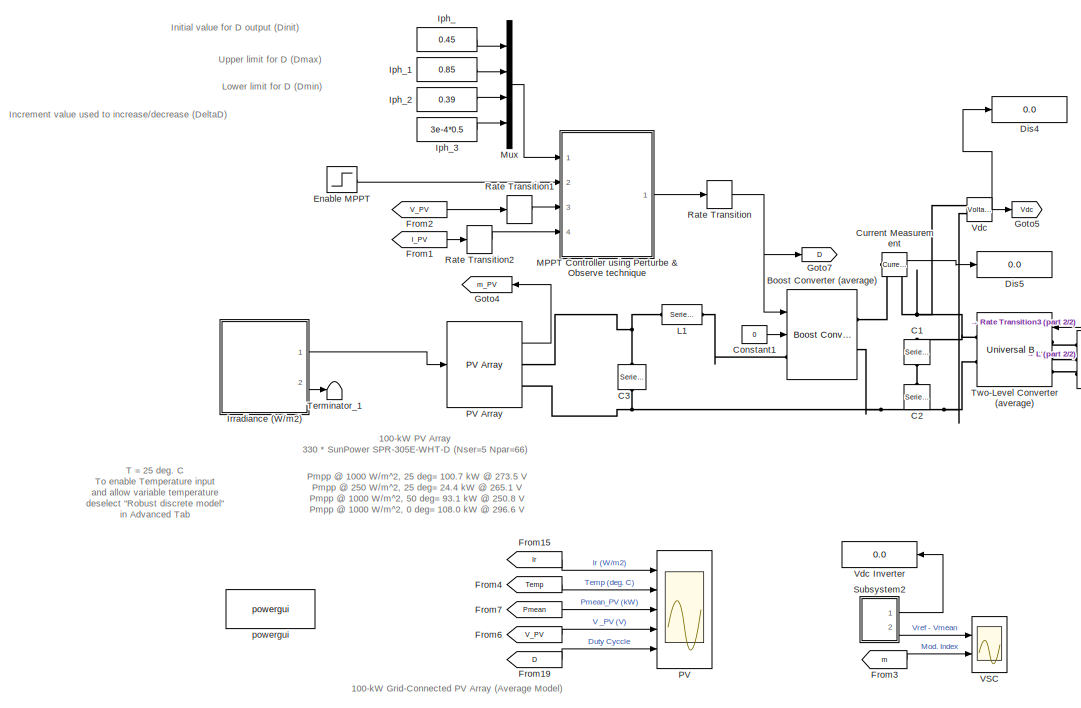
[diagram: root canvas - part 1/2, left side, full height]
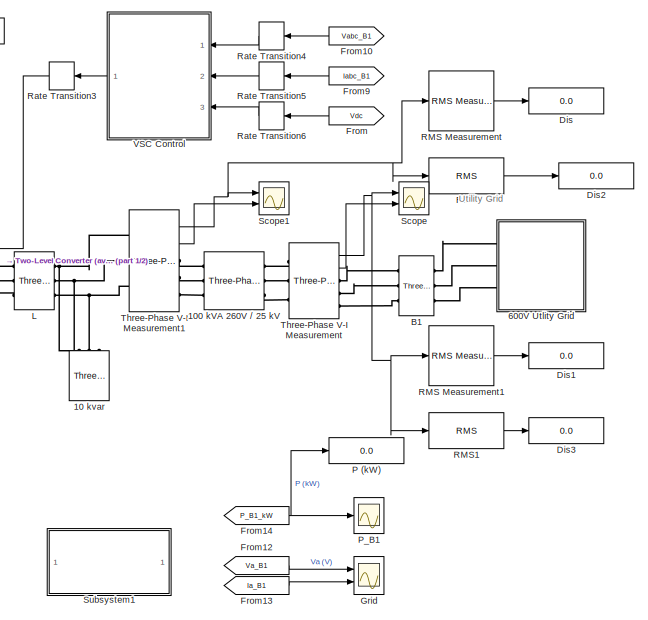
[diagram: root canvas - part 2/2, right side, full height]
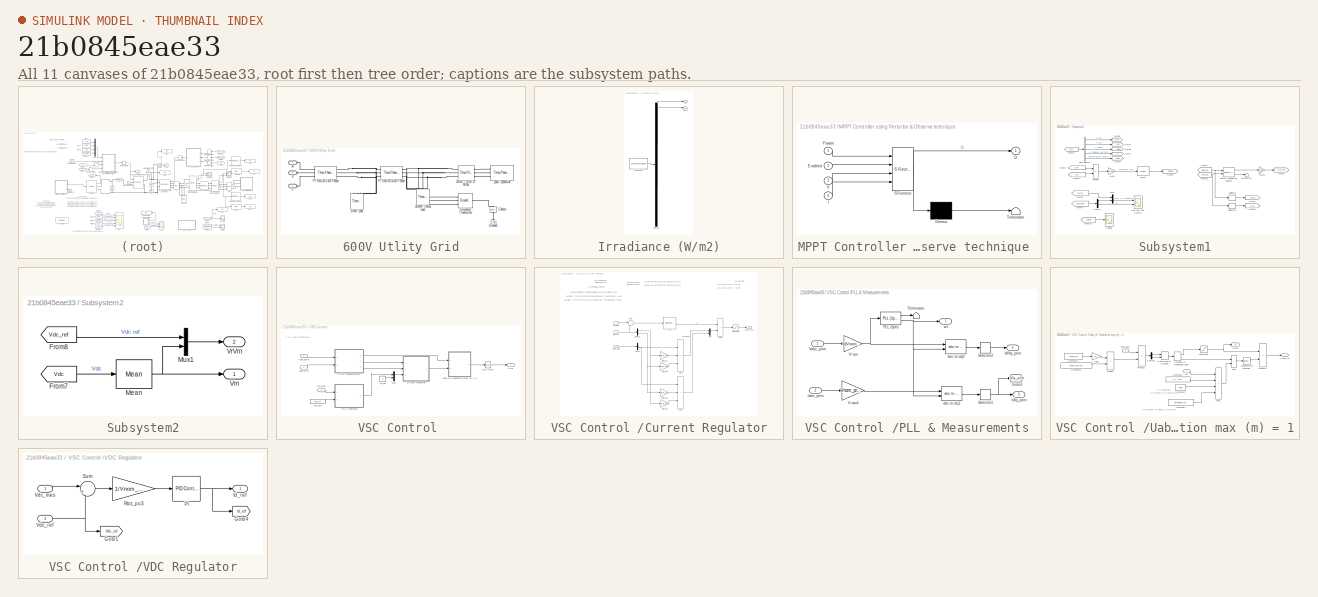
[diagram: thumbnail index - all 11 canvases of the model, root first then tree order]
MODEL slx_21b0845eae33
KIND model
CONFIG AbsTol = auto
CONFIG EnableMultiTasking = off
CONFIG FixedStep = auto
CONFIG MaxStep = auto
CONFIG MinStep = auto
CONFIG PreLoadFcn = Ts_Power=50e-6;\nTs_Control=100e-6;\n\n\n
CONFIG RelTol = 1e-3
CONFIG SampleTimeConstraint = Unconstrained
CONFIG Solver = FixedStepDiscrete
CONFIG SolverName = FixedStepDiscrete
CONFIG StartTime = 0.0
CONFIG StopTime = 0.1
BLOCK [Reference] 10 kvar  REF=powerlib/Elements/Three-Phase
Series RLC Load
  AttributesFormatString = \n
  NameLocation = right
  Ports = [0, 0, 0, 0, 0, 3]
  SourceBlock = powerlib/Elements/Three-Phase\nSeries RLC Load
  SourceProductBaseCode = PS
  SourceType = Three-Phase Series RLC Load
BLOCK [Reference] 100 kVA 260V // 25 kV  REF=powerlib/Elements/Three-Phase
Transformer
(Two Windings)
  AttributesFormatString = \n
  Ports = [0, 0, 0, 0, 0, 3, 3]
  SourceBlock = powerlib/Elements/Three-Phase\nTransformer\n(Two Windings)
  SourceProductBaseCode = PS
  SourceType = Three-Phase Transformer (Two Windings)
BLOCK [SubSystem] 600V Utlity Grid
  Ports = [0, 0, 0, 0, 0, 3]
  RequestExecContextInheritance = off
BLOCK [Reference] 600V Utlity Grid/120 kV // 25 kV 47 MVA  REF=powerlib/Elements/Three-Phase
Transformer
(Two Windings)
  AttributesFormatString = \n
  Ports = [0, 0, 0, 0, 0, 3, 3]
  SourceBlock = powerlib/Elements/Three-Phase\nTransformer\n(Two Windings)
  SourceProductBaseCode = PS
  SourceType = Three-Phase Transformer (Two Windings)
BLOCK [Reference] 600V Utlity Grid/120kV 2500MVA  REF=powerlib/Electrical
Sources/Three-Phase Source
  Ports = [0, 0, 0, 0, 0, 0, 3]
  SourceBlock = powerlib/Electrical\nSources/Three-Phase Source
  SourceProductBaseCode = PS
  SourceType = Three-Phase Source
BLOCK [Reference] 600V Utlity Grid/2-MW Load  REF=powerlib/Elements/Three-Phase
Parallel RLC Load
  AttributesFormatString = \n
  NameLocation = left
  Ports = [0, 0, 0, 0, 0, 3]
  SourceBlock = powerlib/Elements/Three-Phase\nParallel RLC Load
  SourceProductBaseCode = PS
  SourceType = Three-Phase Parallel RLC Load
BLOCK [Reference] 600V Utlity Grid/3.3ohms   REF=powerlib/Elements/Series RLC Branch
  NameLocation = right
  Ports = [0, 0, 0, 0, 0, 1, 1]
  SourceBlock = powerlib/Elements/Series RLC Branch
  SourceProductBaseCode = PS
  SourceType = Series RLC Branch
BLOCK [Reference] 600V Utlity Grid/30-MW 2-Mvar Load  REF=powerlib/Elements/Three-Phase
Parallel RLC Load
  AttributesFormatString = \n
  NameLocation = left
  Ports = [0, 0, 0, 0, 0, 3]
  SourceBlock = powerlib/Elements/Three-Phase\nParallel RLC Load
  SourceProductBaseCode = PS
  SourceType = Three-Phase Parallel RLC Load
BLOCK [PMIOPort] 600V Utlity Grid/A
  Side = Left
BLOCK [PMIOPort] 600V Utlity Grid/B
  Port = 2
  Side = Left
BLOCK [PMIOPort] 600V Utlity Grid/C
  Port = 3
  Side = Left
BLOCK [Reference] 600V Utlity Grid/Ground3  REF=powerlib/Elements/Ground
  AttributesFormatString = \n
  NameLocation = right
  Ports = [0, 0, 0, 0, 0, 1]
  SourceBlock = powerlib/Elements/Ground
  SourceProductBaseCode = PS
  SourceType = Ground
BLOCK [Reference] 600V Utlity Grid/Grounding Transformer   REF=powerlib/Elements/Grounding
Transformer 
  Ports = [0, 0, 0, 0, 0, 3, 1]
  SourceBlock = powerlib/Elements/Grounding\nTransformer
  SourceProductBaseCode = PS
  SourceType = Grounding Transformer
BLOCK [Reference] 600V Utlity Grid/PI Section 14 km Feeder  REF=powerlib/Elements/Three-Phase
PI Section Line
  AttributesFormatString = \n
  Ports = [0, 0, 0, 0, 0, 3, 3]
  SourceBlock = powerlib/Elements/Three-Phase\nPI Section Line
  SourceProductBaseCode = PS
  SourceType = Three-Phase PI Section Line
BLOCK [Reference] 600V Utlity Grid/PI Section 5 km Feeder  REF=powerlib/Elements/Three-Phase
PI Section Line
  AttributesFormatString = \n
  Ports = [0, 0, 0, 0, 0, 3, 3]
  SourceBlock = powerlib/Elements/Three-Phase\nPI Section Line
  SourceProductBaseCode = PS
  SourceType = Three-Phase PI Section Line
BLOCK [Reference] B1  REF=powerlib/Measurements/Three-Phase
V-I Measurement
  Ports = [0, 0, 0, 0, 0, 3, 3]
  SourceBlock = powerlib/Measurements/Three-Phase\nV-I Measurement
  SourceProductBaseCode = PS
  SourceType = Three-Phase VI Measurement
BLOCK [Reference] Boost Converter (average)  REF=powerlib/Power
Electronics/Boost Converter
  Ports = [2, 0, 0, 0, 0, 1, 2]
  SourceBlock = powerlib/Power\nElectronics/Boost Converter
  SourceProductBaseCode = PS
  SourceType = Boost Converter
BLOCK [Reference] C1  REF=powerlib/Elements/Series RLC Branch
  AttributesFormatString = \n
  NameLocation = left
  Ports = [0, 0, 0, 0, 0, 1, 1]
  SourceBlock = powerlib/Elements/Series RLC Branch
  SourceProductBaseCode = PS
  SourceType = Series RLC Branch
BLOCK [Reference] C2  REF=powerlib/Elements/Series RLC Branch
  AttributesFormatString = \n
  NameLocation = left
  Ports = [0, 0, 0, 0, 0, 1, 1]
  SourceBlock = powerlib/Elements/Series RLC Branch
  SourceProductBaseCode = PS
  SourceType = Series RLC Branch
BLOCK [Reference] C3  REF=powerlib/Elements/Series RLC Branch
  AttributesFormatString = \n
  NameLocation = left
  Ports = [0, 0, 0, 0, 0, 1, 1]
  SourceBlock = powerlib/Elements/Series RLC Branch
  SourceProductBaseCode = PS
  SourceType = Series RLC Branch
BLOCK [Constant] Constant1
  Value = 0
BLOCK [Reference] Current Measurement  REF=powerlib/Measurements/Current Measurement
  Ports = [0, 1, 0, 0, 0, 1, 1]
  SourceBlock = powerlib/Measurements/Current Measurement
  SourceProductBaseCode = PS
  SourceType = Current Measurement
  UserDataPersistent = on
BLOCK [Display] Dis
  Decimation = 2000
  Format = bank
  Ports = [1]
BLOCK [Display] Dis1
  Decimation = 2000
  Format = bank
  Ports = [1]
BLOCK [Display] Dis2
  Decimation = 2000
  Format = bank
  Ports = [1]
BLOCK [Display] Dis3
  Decimation = 2000
  Format = bank
  Ports = [1]
BLOCK [Display] Dis4
  Decimation = 2000
  Format = bank
  Ports = [1]
BLOCK [Display] Dis5
  Decimation = 2000
  Format = bank
  Ports = [1]
BLOCK [Step] Enable MPPT
  SampleTime = 0
  Time = Ts_Control
BLOCK [From] From
  GotoTag = Vdc
  TagVisibility = global
BLOCK [From] From1
  CloseFcn = tagdialog Close
  GotoTag = I_PV
  TagVisibility = global
BLOCK [From] From10
  CloseFcn = tagdialog Close
  GotoTag = Vabc_B1
  TagVisibility = global
BLOCK [From] From12
  CloseFcn = tagdialog Close
  GotoTag = Va_B1
  TagVisibility = global
BLOCK [From] From13
  CloseFcn = tagdialog Close
  GotoTag = Ia_B1
  TagVisibility = global
BLOCK [From] From14
  CloseFcn = tagdialog Close
  GotoTag = P_B1_kW
  TagVisibility = global
BLOCK [From] From15
  CloseFcn = tagdialog Close
  GotoTag = Ir
  TagVisibility = global
BLOCK [From] From19
  CloseFcn = tagdialog Close
  GotoTag = D
  TagVisibility = global
BLOCK [From] From2
  CloseFcn = tagdialog Close
  GotoTag = V_PV
  TagVisibility = global
BLOCK [From] From3
  CloseFcn = tagdialog Close
  GotoTag = m
  TagVisibility = global
BLOCK [From] From4
  CloseFcn = tagdialog Close
  GotoTag = Temp
  TagVisibility = global
BLOCK [From] From6
  CloseFcn = tagdialog Close
  GotoTag = V_PV
  TagVisibility = global
BLOCK [From] From7
  CloseFcn = tagdialog Close
  GotoTag = Pmean
  TagVisibility = global
BLOCK [From] From9
  CloseFcn = tagdialog Close
  GotoTag = Iabc_B1
  TagVisibility = global
BLOCK [Goto] Goto4
  GotoTag = m_PV
  TagVisibility = global
BLOCK [Goto] Goto5
  GotoTag = Vdc
  TagVisibility = global
BLOCK [Goto] Goto7
  GotoTag = D
  TagVisibility = global
BLOCK [Scope] Grid
  Floating = off
  NumInputPorts = 2
  Ports = [2]
  ScopeSpecificationString = Simulink.scopes.TimeScopeBlockCfg('CurrentConfiguration', extmgr.ConfigurationSet(extmgr.Configuration('Core','General UI',true),extmgr.Configuration('Core','Source UI',true),extmgr.Configuration('Sources','WiredSimulink',true,'DataLoggingSaveFormat','Array','DataLoggingDecimation','1','DataLoggingDecimateData',true,'DataLoggingVariableName','ScopeData1'),extmgr.Configuration('Visuals','Time Domai...<+2284ch>
BLOCK [Constant] Iph_
  Value = 0.45
BLOCK [Constant] Iph_1
  Value = 0.85
BLOCK [Constant] Iph_2
  Value = 0.39
BLOCK [Constant] Iph_3
  Value = 3e-4*0.5
BLOCK [SubSystem] Irradiance (W//m2)
  ClipboardFcn = sigbuilder_block('clipboard');
  CloseFcn = sigbuilder_block('close');
  ContinueFcn = sigbuilder_block('continue')
  CopyFcn = sigbuilder_block('copy');
  DeleteFcn = sigbuilder_block('delete');
  LoadFcn = sigbuilder_block('load');
  MaskHideContents = on
  ModelCloseFcn = sigbuilder_block('modelClose');
  NameChangeFcn = sigbuilder_block('namechange');
  NameLocation = top
  OpenFcn = sigbuilder_block('open',[406.5 224.25 550.5 395.25 ]);
  PauseFcn = sigbuilder_block('pause')
  Ports = [0, 2]
  PreSaveFcn = sigbuilder_block('preSave');
  RequestExecContextInheritance = off
  StartFcn = sigbuilder_block('start');
  StopFcn = sigbuilder_block('stop');
  Tag = STV Subsys
BLOCK [Demux] Irradiance (W//m2)/Demux
  DisplayOption = none
  Outputs = 2
  Ports = [1, 2]
  Tag = STV Demux
BLOCK [FromWorkspace] Irradiance (W//m2)/FromWs
  Tag = STV FromWs
  VariableName = tuvar
BLOCK [Outport] Irradiance (W//m2)/Ir
  Tag = STV Outport
  VectorParamsAs1DForOutWhenUnconnected = off
BLOCK [Outport] Irradiance (W//m2)/Temp
  Port = 2
  Tag = STV Outport
  VectorParamsAs1DForOutWhenUnconnected = off
BLOCK [Reference] L  REF=powerlib/Elements/Three-Phase
Series RLC Branch
  AttributesFormatString = \n
  Ports = [0, 0, 0, 0, 0, 3, 3]
  SourceBlock = powerlib/Elements/Three-Phase\nSeries RLC Branch
  SourceProductBaseCode = PS
  SourceType = Three-Phase Series RLC Branch
BLOCK [Reference] L1  REF=powerlib/Elements/Series RLC Branch
  Ports = [0, 0, 0, 0, 0, 1, 1]
  SourceBlock = powerlib/Elements/Series RLC Branch
  SourceProductBaseCode = PS
  SourceType = Series RLC Branch
BLOCK [SubSystem] MPPT Controller using Perturbe & Observe technique 
  ErrorFcn = Stateflow.Translate.translate
  NameLocation = top
  PermitHierarchicalResolution = ExplicitOnly
  Ports = [4, 1]
  RequestExecContextInheritance = off
  SFBlockType = MATLAB Function
  TreatAsAtomicUnit = on
BLOCK [Demux] MPPT Controller using Perturbe & Observe technique / Demux 
  Outputs = 1
  Ports = [1, 1]
BLOCK [S-Function] MPPT Controller using Perturbe & Observe technique / SFunction 
  EnableBusSupport = on
  FunctionName = sf_sfun
  PortCounts = [4 2]
  Ports = [4, 2]
  SFcnIsStateOwnerBlock = off
  SFunctionDeploymentMode = off
  Tag = Stateflow S-Function 4
BLOCK [Terminator] MPPT Controller using Perturbe & Observe technique / Terminator 
BLOCK [Outport] MPPT Controller using Perturbe & Observe technique /D
  VectorParamsAs1DForOutWhenUnconnected = off
BLOCK [Inport] MPPT Controller using Perturbe & Observe technique /Enabled
  Port = 2
BLOCK [Inport] MPPT Controller using Perturbe & Observe technique /I
  Port = 4
BLOCK [Inport] MPPT Controller using Perturbe & Observe technique /Param
BLOCK [Inport] MPPT Controller using Perturbe & Observe technique /V
  Port = 3
BLOCK [Mux] Mux
  DisplayOption = bar
  Ports = [4, 1]
BLOCK [Display] P (kW)
  Decimation = 2000
  Format = bank
  Ports = [1]
BLOCK [Scope] PV
  Floating = off
  NumInputPorts = 5
  Ports = [5]
  ScopeSpecificationString = Simulink.scopes.TimeScopeBlockCfg('CurrentConfiguration', extmgr.ConfigurationSet(extmgr.Configuration('Core','General UI',true),extmgr.Configuration('Core','Source UI',true),extmgr.Configuration('Sources','WiredSimulink',true,'DataLoggingSaveFormat','Array','DataLoggingDecimation','1','DataLoggingDecimateData',true,'DataLoggingVariableName','ScopeData3'),extmgr.Configuration('Visuals','Time Domai...<+4452ch>
BLOCK [Reference] PV Array  REF=re_lib/Solar/PV Array
  Ports = [1, 1, 0, 0, 0, 0, 2]
  SourceBlock = re_lib/Solar/PV Array
  SourceProductBaseCode = PS
  SourceType = PV array
BLOCK [Scope] P_B1
  Floating = off
  NumInputPorts = 1
  Ports = [1]
  ScopeSpecificationString = Simulink.scopes.TimeScopeBlockCfg('CurrentConfiguration', extmgr.ConfigurationSet(extmgr.Configuration('Core','General UI',true),extmgr.Configuration('Core','Source UI',true),extmgr.Configuration('Sources','WiredSimulink',true,'DataLoggingSaveFormat','Array','DataLoggingDecimation','1','DataLoggingDecimateData',true,'DataLoggingVariableName','ScopeData2'),extmgr.Configuration('Visuals','Time Domai...<+865ch>
BLOCK [Reference] RMS  REF=dspstat3/RMS
  Ports = [1, 1]
  SourceBlock = dspstat3/RMS
  SourceProductBaseCode = DS
  SourceType = RMS
  UserDataPersistent = on
BLOCK [Reference] RMS Measurement  REF=eeRmsMeasurement/RMS
Measurement
  Commented = on
  Ports = [1, 1]
  SourceBlock = eeRmsMeasurement/RMS\nMeasurement
  SourceProductBaseCode = PS
  SourceType = RMS Measurement
BLOCK [Reference] RMS Measurement1  REF=eeRmsMeasurement/RMS
Measurement
  Commented = on
  Ports = [1, 1]
  SourceBlock = eeRmsMeasurement/RMS\nMeasurement
  SourceProductBaseCode = PS
  SourceType = RMS Measurement
BLOCK [Reference] RMS1  REF=dspstat3/RMS
  Ports = [1, 1]
  SourceBlock = dspstat3/RMS
  SourceProductBaseCode = DS
  SourceType = RMS
  UserDataPersistent = on
BLOCK [RateTransition] Rate Transition
  OutPortSampleTime = Ts_Power
BLOCK [RateTransition] Rate Transition1
  OutPortSampleTime = Ts_Control
BLOCK [RateTransition] Rate Transition2
  OutPortSampleTime = Ts_Control
BLOCK [RateTransition] Rate Transition3
  NameLocation = top
  OutPortSampleTime = Ts_Power
BLOCK [RateTransition] Rate Transition4
  OutPortSampleTime = Ts_Control
BLOCK [RateTransition] Rate Transition5
  OutPortSampleTime = Ts_Control
BLOCK [RateTransition] Rate Transition6
  OutPortSampleTime = Ts_Control
BLOCK [Scope] Scope
  Floating = off
  NumInputPorts = 2
  Ports = [2]
  ScopeSpecificationString = Simulink.scopes.TimeScopeBlockCfg('CurrentConfiguration', extmgr.ConfigurationSet(extmgr.Configuration('Core','General UI',true),extmgr.Configuration('Core','Source UI',true),extmgr.Configuration('Sources','WiredSimulink',true,'DataLoggingVariableName','ScopeData1'),extmgr.Configuration('Visuals','Time Domain',true,'SerializedDisplays',{struct('MinYLimReal','-24960.74448','MaxYLimReal','21962.5171...<+2321ch>
BLOCK [Scope] Scope1
  Floating = off
  NumInputPorts = 2
  Ports = [2]
  ScopeSpecificationString = Simulink.scopes.TimeScopeBlockCfg('CurrentConfiguration', extmgr.ConfigurationSet(extmgr.Configuration('Core','General UI',true),extmgr.Configuration('Core','Source UI',true),extmgr.Configuration('Sources','WiredSimulink',true,'DataLoggingVariableName','ScopeData2'),extmgr.Configuration('Visuals','Time Domain',true,'SerializedDisplays',{struct('MinYLimReal','-293.51757','MaxYLimReal','295.5805','Y...<+2319ch>
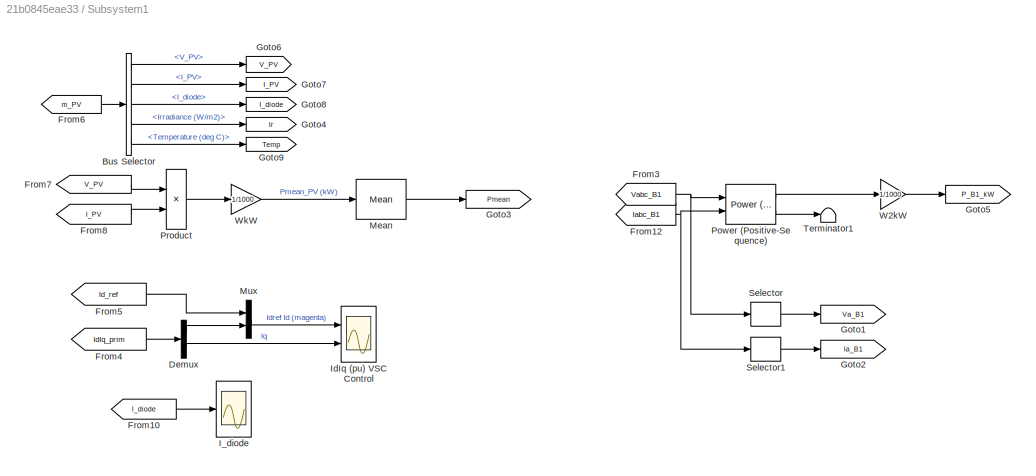
BLOCK [SubSystem] Subsystem1
  NameLocation = top
  Ports = []
  RequestExecContextInheritance = off
BLOCK [BusSelector] Subsystem1/Bus Selector
  OutputSignals = V_PV,I_PV,I_diode,Irradiance (W/m2),Temperature (deg C)
  Ports = [1, 5]
BLOCK [Demux] Subsystem1/Demux
  Outputs = 2
  Ports = [1, 2]
BLOCK [From] Subsystem1/From10
  CloseFcn = tagdialog Close
  GotoTag = I_diode
  TagVisibility = global
BLOCK [From] Subsystem1/From12
  CloseFcn = tagdialog Close
  GotoTag = Iabc_B1
  TagVisibility = global
BLOCK [From] Subsystem1/From3
  CloseFcn = tagdialog Close
  GotoTag = Vabc_B1
  TagVisibility = global
BLOCK [From] Subsystem1/From4
  CloseFcn = tagdialog Close
  GotoTag = IdIq_prim
  TagVisibility = global
BLOCK [From] Subsystem1/From5
  CloseFcn = tagdialog Close
  GotoTag = Id_ref
  TagVisibility = global
BLOCK [From] Subsystem1/From6
  GotoTag = m_PV
  TagVisibility = global
BLOCK [From] Subsystem1/From7
  GotoTag = V_PV
  TagVisibility = global
BLOCK [From] Subsystem1/From8
  GotoTag = I_PV
  TagVisibility = global
BLOCK [Goto] Subsystem1/Goto1
  GotoTag = Va_B1
  TagVisibility = global
BLOCK [Goto] Subsystem1/Goto2
  GotoTag = Ia_B1
  TagVisibility = global
BLOCK [Goto] Subsystem1/Goto3
  GotoTag = Pmean
  TagVisibility = global
BLOCK [Goto] Subsystem1/Goto4
  GotoTag = Ir
  TagVisibility = global
BLOCK [Goto] Subsystem1/Goto5
  GotoTag = P_B1_kW
  TagVisibility = global
BLOCK [Goto] Subsystem1/Goto6
  GotoTag = V_PV
  TagVisibility = global
BLOCK [Goto] Subsystem1/Goto7
  GotoTag = I_PV
  TagVisibility = global
BLOCK [Goto] Subsystem1/Goto8
  GotoTag = I_diode
  TagVisibility = global
BLOCK [Goto] Subsystem1/Goto9
  GotoTag = Temp
  TagVisibility = global
BLOCK [Scope] Subsystem1/I_diode
  Floating = off
  NumInputPorts = 1
  Ports = [1]
  ScopeSpecificationString = Simulink.scopes.TimeScopeBlockCfg('CurrentConfiguration', extmgr.ConfigurationSet(extmgr.Configuration('Core','General UI',true),extmgr.Configuration('Core','Source UI',true),extmgr.Configuration('Sources','WiredSimulink',true,'DataLoggingSaveFormat','Array','DataLoggingDecimation','1','DataLoggingDecimateData',true),extmgr.Configuration('Visuals','Time Domain',true,'DisplayPropertyDefaults',struc...<+826ch>
BLOCK [Scope] Subsystem1/IdIq (pu) VSC Control
  Floating = off
  NumInputPorts = 2
  Ports = [2]
  ScopeSpecificationString = Simulink.scopes.TimeScopeBlockCfg('CurrentConfiguration', extmgr.ConfigurationSet(extmgr.Configuration('Core','General UI',true),extmgr.Configuration('Core','Source UI',true),extmgr.Configuration('Sources','WiredSimulink',true,'DataLoggingSaveFormat','Array','DataLoggingDecimation','1','DataLoggingDecimateData',true),extmgr.Configuration('Visuals','Time Domain',true,'SerializedDisplays',{struct('M...<+2239ch>
BLOCK [Reference] Subsystem1/Mean  REF=powerlib_meascontrol/Measurements/Mean
  Ports = [1, 1]
  SourceBlock = powerlib_meascontrol/Measurements/Mean
  SourceProductBaseCode = PS
  SourceType = Mean
BLOCK [Mux] Subsystem1/Mux
  DisplayOption = bar
  Inputs = 2
  Ports = [2, 1]
BLOCK [Reference] Subsystem1/Power (Positive-Sequence)  REF=powerlib_meascontrol/Measurements/Power
(Positive-Sequence)
  Ports = [2, 2]
  SourceBlock = powerlib_meascontrol/Measurements/Power\n(Positive-Sequence)
  SourceProductBaseCode = PS
  SourceType = Power (Positive-Sequence)
BLOCK [Product] Subsystem1/Product
  Ports = [2, 1]
  RndMeth = Zero
BLOCK [Selector] Subsystem1/Selector
  IndexOptions = Index vector (dialog)
  Indices = [1]
  InputPortWidth = 3
  OutputSizes = 1
  Ports = [1, 1]
BLOCK [Selector] Subsystem1/Selector1
  IndexOptions = Index vector (dialog)
  Indices = [1]
  InputPortWidth = 3
  OutputSizes = 1
  Ports = [1, 1]
BLOCK [Terminator] Subsystem1/Terminator1
  NameLocation = top
BLOCK [Gain] Subsystem1/W2kW
  Gain = 1/1000
BLOCK [Gain] Subsystem1/WkW
  Gain = 1/1000
BLOCK [SubSystem] Subsystem2
  Ports = [0, 2]
  RequestExecContextInheritance = off
BLOCK [From] Subsystem2/From7
  CloseFcn = tagdialog Close
  GotoTag = Vdc
  TagVisibility = global
BLOCK [From] Subsystem2/From8
  CloseFcn = tagdialog Close
  GotoTag = Vdc_ref
  TagVisibility = global
BLOCK [Reference] Subsystem2/Mean  REF=powerlib_meascontrol/Measurements/Mean
  Ports = [1, 1]
  SourceBlock = powerlib_meascontrol/Measurements/Mean
  SourceProductBaseCode = PS
  SourceType = Mean
BLOCK [Mux] Subsystem2/Mux1
  DisplayOption = bar
  Inputs = 2
  Ports = [2, 1]
BLOCK [Outport] Subsystem2/Vm
  VectorParamsAs1DForOutWhenUnconnected = off
BLOCK [Outport] Subsystem2/VrVm
  Port = 2
  VectorParamsAs1DForOutWhenUnconnected = off
BLOCK [Terminator] Terminator_1
BLOCK [Reference] Three-Phase V-I Measurement  REF=powerlib/Measurements/Three-Phase
V-I Measurement
  Ports = [0, 2, 0, 0, 0, 3, 3]
  SourceBlock = powerlib/Measurements/Three-Phase\nV-I Measurement
  SourceProductBaseCode = PS
  SourceType = Three-Phase VI Measurement
BLOCK [Reference] Three-Phase V-I Measurement1  REF=powerlib/Measurements/Three-Phase
V-I Measurement
  Ports = [0, 2, 0, 0, 0, 3, 3]
  SourceBlock = powerlib/Measurements/Three-Phase\nV-I Measurement
  SourceProductBaseCode = PS
  SourceType = Three-Phase VI Measurement
BLOCK [Reference] Two-Level Converter (average)  REF=powerlib/Power
Electronics/Universal Bridge
  Ports = [1, 0, 0, 0, 0, 3, 2]
  SourceBlock = powerlib/Power\nElectronics/Universal Bridge
  SourceProductBaseCode = PS
  SourceType = Universal Bridge
BLOCK [Scope] VSC
  Floating = off
  NumInputPorts = 2
  Ports = [2]
  ScopeSpecificationString = Simulink.scopes.TimeScopeBlockCfg('CurrentConfiguration', extmgr.ConfigurationSet(extmgr.Configuration('Core','General UI',true),extmgr.Configuration('Core','Source UI',true),extmgr.Configuration('Sources','WiredSimulink',true,'DataLoggingSaveFormat','Array','DataLoggingDecimation','1','DataLoggingDecimateData',true,'DataLoggingVariableName','ScopeData4'),extmgr.Configuration('Visuals','Time Domai...<+2323ch>
BLOCK [SubSystem] VSC Control 
  NameLocation = top
  Ports = [3, 1]
  RequestExecContextInheritance = off
BLOCK [SubSystem] VSC Control /Current Regulator
  Ports = [3, 1]
  RequestExecContextInheritance = off
BLOCK [Sum] VSC Control /Current Regulator/Add1
  IconShape = rectangular
  Inputs = ++-
  Ports = [3, 1]
BLOCK [Sum] VSC Control /Current Regulator/Add2
  IconShape = rectangular
  Ports = [2, 1]
BLOCK [Sum] VSC Control /Current Regulator/Add3
  IconShape = rectangular
  Inputs = +++
  Ports = [3, 1]
BLOCK [Demux] VSC Control /Current Regulator/Demux
  Outputs = 2
  Ports = [1, 2]
BLOCK [Demux] VSC Control /Current Regulator/Demux1
  Outputs = 2
  Ports = [1, 2]
BLOCK [Inport] VSC Control /Current Regulator/IdIq_mes
  Port = 2
  PortDimensions = 2
BLOCK [Inport] VSC Control /Current Regulator/IdIq_ref
  Port = 3
  PortDimensions = 2
BLOCK [Gain] VSC Control /Current Regulator/Ltot_pu1
  Gain = Ltot_pu
  OutDataTypeStr = Inherit: Same as input
  ParamDataTypeStr = Inherit: Same as input
  SaturateOnIntegerOverflow = on
BLOCK [Gain] VSC Control /Current Regulator/Ltot_pu2
  Gain = Ltot_pu
  OutDataTypeStr = Inherit: Same as input
  ParamDataTypeStr = Inherit: Same as input
  SaturateOnIntegerOverflow = on
BLOCK [Mux] VSC Control /Current Regulator/Mux
  DisplayOption = bar
  Inputs = 2
  Ports = [2, 1]
BLOCK [Reference] VSC Control /Current Regulator/PI  REF=simulink/Continuous/PID Controller
  Ports = [1, 1]
  SourceBlock = simulink/Continuous/PID Controller
  SourceProductBaseCode = SL
  SourceType = PID 1dof
BLOCK [Gain] VSC Control /Current Regulator/Rtot_pu1
  Gain = Rtot_pu
  NameLocation = top
  OutDataTypeStr = Inherit: Same as input
  ParamDataTypeStr = Inherit: Same as input
  SaturateOnIntegerOverflow = on
BLOCK [Gain] VSC Control /Current Regulator/Rtot_pu5
  Gain = Rtot_pu
  NameLocation = top
  OutDataTypeStr = Inherit: Same as input
  ParamDataTypeStr = Inherit: Same as input
  SaturateOnIntegerOverflow = on
BLOCK [Saturate] VSC Control /Current Regulator/Saturation
  LowerLimit = -2
  UpperLimit = 2
BLOCK [Sum] VSC Control /Current Regulator/Sum
  Inputs = |-+
  Ports = [2, 1]
BLOCK [Outport] VSC Control /Current Regulator/VdVq_conv
  VectorParamsAs1DForOutWhenUnconnected = off
BLOCK [Inport] VSC Control /Current Regulator/VdVq_mes
  PortDimensions = 2
BLOCK [Inport] VSC Control /Iabc_prim
  Port = 2
  PortDimensions = 3
BLOCK [Constant] VSC Control /Iq_ref
  Value = 0
BLOCK [Mux] VSC Control /Mux
  DisplayOption = bar
  Inputs = 2
  Ports = [2, 1]
BLOCK [SubSystem] VSC Control /PLL & Measurements
  Ports = [2, 3]
  RequestExecContextInheritance = off
BLOCK [Goto] VSC Control /PLL & Measurements/Goto3
  GotoTag = IdIq_prim
  TagVisibility = global
BLOCK [Inport] VSC Control /PLL & Measurements/Iabc_prim
  Port = 2
BLOCK [Outport] VSC Control /PLL & Measurements/IdIq_prim
  Port = 3
  VectorParamsAs1DForOutWhenUnconnected = off
BLOCK [Reference] VSC Control /PLL & Measurements/PLL (3ph)  REF=powerlib_meascontrol/PLL/PLL
(3ph)
  Ports = [1, 2]
  SourceBlock = powerlib_meascontrol/PLL/PLL\n(3ph)
  SourceProductBaseCode = PS
  SourceType = PLL (3ph)
BLOCK [Selector] VSC Control /PLL & Measurements/Selector1
  IndexOptions = Index vector (dialog)
  Indices = [1 2]
  InputPortWidth = 3
  OutputSizes = 1
  Ports = [1, 1]
BLOCK [Selector] VSC Control /PLL & Measurements/Selector2
  IndexOptions = Index vector (dialog)
  Indices = [1 2]
  InputPortWidth = 3
  OutputSizes = 1
  Ports = [1, 1]
BLOCK [Terminator] VSC Control /PLL & Measurements/Terminator
BLOCK [Gain] VSC Control /PLL & Measurements/V->pu
  Gain = 1/(Vnom_prim*sqrt(2)/sqrt(3))
  OutDataTypeStr = Inherit: Same as input
  ParamDataTypeStr = Inherit: Same as input
  SaturateOnIntegerOverflow = on
BLOCK [Gain] VSC Control /PLL & Measurements/V->pu1
  Gain = Vnom_prim*sqrt(3)/Pnom/sqrt(2)
  OutDataTypeStr = Inherit: Same as input
  ParamDataTypeStr = Inherit: Same as input
  SaturateOnIntegerOverflow = on
BLOCK [Inport] VSC Control /PLL & Measurements/Vabc_prim
BLOCK [Outport] VSC Control /PLL & Measurements/VdVq_prim
  Port = 2
  VectorParamsAs1DForOutWhenUnconnected = off
BLOCK [Reference] VSC Control /PLL & Measurements/abc to dq0  REF=powerlib_meascontrol/Transformations/abc to dq0
  Ports = [2, 1]
  SourceBlock = powerlib_meascontrol/Transformations/abc to dq0
  SourceProductBaseCode = PS
  SourceType = abc to dq0 Transformation
BLOCK [Reference] VSC Control /PLL & Measurements/abc to dq1  REF=powerlib_meascontrol/Transformations/abc to dq0
  Ports = [2, 1]
  SourceBlock = powerlib_meascontrol/Transformations/abc to dq0
  SourceProductBaseCode = PS
  SourceType = abc to dq0 Transformation
BLOCK [Outport] VSC Control /PLL & Measurements/wt
  VectorParamsAs1DForOutWhenUnconnected = off
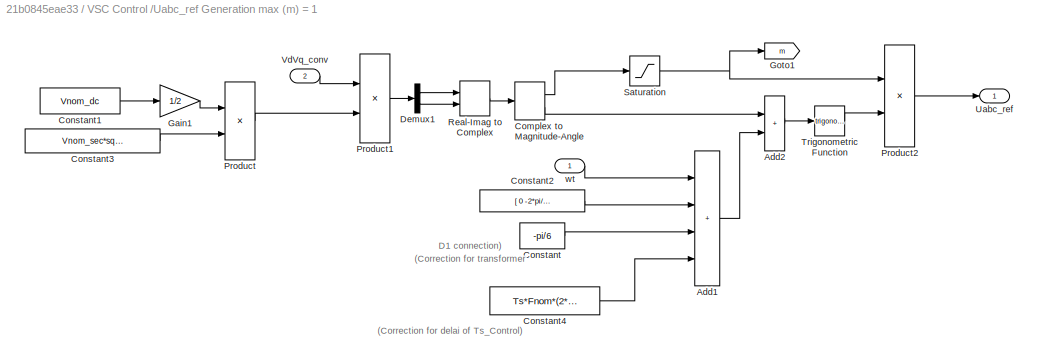
BLOCK [SubSystem] VSC Control /Uabc_ref Generation max (m) = 1
  Ports = [2, 1]
  RequestExecContextInheritance = off
BLOCK [Sum] VSC Control /Uabc_ref Generation max (m) = 1/Add1
  IconShape = rectangular
  Inputs = ++++
  Ports = [4, 1]
BLOCK [Sum] VSC Control /Uabc_ref Generation max (m) = 1/Add2
  IconShape = rectangular
  Ports = [2, 1]
BLOCK [ComplexToMagnitudeAngle] VSC Control /Uabc_ref Generation max (m) = 1/Complex to Magnitude-Angle
  Ports = [1, 2]
BLOCK [Constant] VSC Control /Uabc_ref Generation max (m) = 1/Constant
  Value = -pi/6
BLOCK [Constant] VSC Control /Uabc_ref Generation max (m) = 1/Constant1
  Value = Vnom_dc
BLOCK [Constant] VSC Control /Uabc_ref Generation max (m) = 1/Constant2
  Value = [ 0  -2*pi/3  2*pi/3  ]
BLOCK [Constant] VSC Control /Uabc_ref Generation max (m) = 1/Constant3
  Value = Vnom_sec*sqrt(2)/sqrt(3)
BLOCK [Constant] VSC Control /Uabc_ref Generation max (m) = 1/Constant4
  Value = Ts*Fnom*(2*pi)
BLOCK [Demux] VSC Control /Uabc_ref Generation max (m) = 1/Demux1
  Outputs = 2
  Ports = [1, 2]
BLOCK [Gain] VSC Control /Uabc_ref Generation max (m) = 1/Gain1
  Gain = 1/2
BLOCK [Goto] VSC Control /Uabc_ref Generation max (m) = 1/Goto1
  GotoTag = m
  TagVisibility = global
BLOCK [Product] VSC Control /Uabc_ref Generation max (m) = 1/Product
  Inputs = */
  Ports = [2, 1]
  RndMeth = Zero
BLOCK [Product] VSC Control /Uabc_ref Generation max (m) = 1/Product1
  Inputs = */
  Ports = [2, 1]
  RndMeth = Zero
BLOCK [Product] VSC Control /Uabc_ref Generation max (m) = 1/Product2
  Inputs = **
  Ports = [2, 1]
  RndMeth = Zero
BLOCK [RealImagToComplex] VSC Control /Uabc_ref Generation max (m) = 1/Real-Imag to Complex
  Ports = [2, 1]
BLOCK [Saturate] VSC Control /Uabc_ref Generation max (m) = 1/Saturation
  LowerLimit = 0
  UpperLimit = 1
BLOCK [Trigonometry] VSC Control /Uabc_ref Generation max (m) = 1/Trigonometric Function
  Ports = [1, 1]
BLOCK [Outport] VSC Control /Uabc_ref Generation max (m) = 1/Uabc_ref
  VectorParamsAs1DForOutWhenUnconnected = off
BLOCK [Inport] VSC Control /Uabc_ref Generation max (m) = 1/VdVq_conv
  Port = 2
BLOCK [Inport] VSC Control /Uabc_ref Generation max (m) = 1/wt
BLOCK [UnitDelay] VSC Control /Unit Delay
  HasFrameUpgradeWarning = on
  SampleTime = Ts_Control
BLOCK [Outport] VSC Control /Uref
  NameLocation = top
  VectorParamsAs1DForOutWhenUnconnected = off
BLOCK [SubSystem] VSC Control /VDC Regulator
  Ports = [2, 1]
  RequestExecContextInheritance = off
BLOCK [Goto] VSC Control /VDC Regulator/Goto1
  GotoTag = Vdc_ref
  TagVisibility = global
BLOCK [Goto] VSC Control /VDC Regulator/Goto4
  GotoTag = Id_ref
  TagVisibility = global
BLOCK [Outport] VSC Control /VDC Regulator/Id_ref
  InitialOutput = 0
  SampleTime = Ts
  VectorParamsAs1DForOutWhenUnconnected = off
BLOCK [Reference] VSC Control /VDC Regulator/PI  REF=simulink/Continuous/PID Controller
  Ports = [1, 1]
  SourceBlock = simulink/Continuous/PID Controller
  SourceProductBaseCode = SL
  SourceType = PID 1dof
BLOCK [Gain] VSC Control /VDC Regulator/Rtot_pu3
  Gain = 1/Vnom_dc
  OutDataTypeStr = Inherit: Same as input
  ParamDataTypeStr = Inherit: Same as input
  SaturateOnIntegerOverflow = on
BLOCK [Sum] VSC Control /VDC Regulator/Sum
  Inputs = |+-
  Ports = [2, 1]
BLOCK [Inport] VSC Control /VDC Regulator/Vdc_mes
  PortDimensions = 1
BLOCK [Inport] VSC Control /VDC Regulator/Vdc_ref
  Port = 2
  PortDimensions = 1
BLOCK [Inport] VSC Control /Vabc_prim
  PortDimensions = 3
BLOCK [Inport] VSC Control /Vdc_mes
  Port = 3
  PortDimensions = 1
BLOCK [Constant] VSC Control /Vdc_ref1
  Value = Vdc_ref
BLOCK [Reference] Vdc   REF=powerlib/Measurements/Voltage Measurement
  AttributesFormatString = \n
  NameLocation = top
  Ports = [0, 1, 0, 0, 0, 2]
  SourceBlock = powerlib/Measurements/Voltage Measurement
  SourceProductBaseCode = PS
  SourceType = Voltage Measurement
  Tag = PoWeRsYsTeMmEaSuReMeNt
BLOCK [Display] Vdc Inverter
  Decimation = 100
  Format = bank
  Ports = [1]
BLOCK [Reference] powergui  REF=powerlib/powergui
  Ports = []
  Priority = 1
  SourceBlock = powerlib/powergui
  SourceProductBaseCode = PS
  SourceType = PSB option menu block
ANNOTATION (root): Utility Grid
ANNOTATION (root): 100-kW PV Array 330 * SunPower SPR-305E-WHT-D (Nser=5 Npar=66)
ANNOTATION (root): 100-kW Grid-Connected PV Array (Average Model)
ANNOTATION (root): Increment value used to increase/decrease (DeltaD)
ANNOTATION (root): Initial value for D output (Dinit)
ANNOTATION (root): Lower limit for D (Dmin)
ANNOTATION (root): Pmpp @ 1000 W/m^2, 25 deg= 100.7 kW @ 273.5 V Pmpp @ 250 W/m^2, 25 deg= 24.4 kW @ 265.1 V Pmpp @ 1000 W/m^2, 50 deg= 93.1 kW @ 250.8 V Pmpp @ 1000 W/m^2, 0 deg= 108.0 kW @ 296.6 V
ANNOTATION (root): T = 25 deg. C To enable Temperature input and allow variable temperature deselect "Robust discrete model" in Advanced Tab
ANNOTATION (root): Upper limit for D (Dmax)
ANNOTATION VSC Control : VSC Main Controller
ANNOTATION VSC Control /Current Regulator: (Vd_prim - Vd_conv) ~= + Iq * Ltot
ANNOTATION VSC Control /Current Regulator: (Vq_prim - Vq_conv) ~ = - Id * Ltot
ANNOTATION VSC Control /Current Regulator: Current Regulator (with feedforward)
ANNOTATION VSC Control /Current Regulator: For Ltot >> Rtot :
ANNOTATION VSC Control /Current Regulator: Id positive --> The converter generates active power ("Inverter mode") = Active Power P positive
ANNOTATION VSC Control /Current Regulator: Iq positive --> The converter absorbs reactive power ("Inductive mode") = Reactive Power Q negative
ANNOTATION VSC Control /Current Regulator: Ltot = Lxfo + Lchoke Rtot = Rxfo + Rchoke
ANNOTATION VSC Control /Current Regulator: Sign Convention: Current going out of the converter = positive current
ANNOTATION VSC Control /Current Regulator: Vd_mes + Id*R - Iq*L + deriv(Id)*L/wbase= Vd_conv
ANNOTATION VSC Control /Current Regulator: Vq_mes + Id*L + Iq*R + deriv(Iq)*L/wbase= Vq_conv
ANNOTATION VSC Control /Current Regulator: harmonic filter neglected
ANNOTATION VSC Control /Uabc_ref Generation max (m) = 1: (Correction for delai of Ts_Control)
ANNOTATION VSC Control /Uabc_ref Generation max (m) = 1: (Correction for transformer D1 connection)
LINE Constant1:1 -> Boost Converter (average):2
LINE Current Measurement:1 -> Dis5:1
LINE Enable MPPT:1 -> MPPT Controller using Perturbe & Observe technique :2
LINE From10:1 -> Rate Transition4:1
LINE From12:1 -> Grid:1
LINE From13:1 -> Grid:2
NET From14:1 -> P (kW):1, P_B1:1
LINE From15:1 -> PV:1
LINE From19:1 -> PV:5
LINE From1:1 -> Rate Transition2:1
LINE From2:1 -> Rate Transition1:1
LINE From3:1 -> VSC:2
LINE From4:1 -> PV:2
LINE From6:1 -> PV:4
LINE From7:1 -> PV:3
LINE From9:1 -> Rate Transition5:1
LINE From:1 -> Rate Transition6:1
LINE Iph_1:1 -> Mux:2
LINE Iph_2:1 -> Mux:3
LINE Iph_3:1 -> Mux:4
LINE Iph_:1 -> Mux:1
LINE Irradiance (W//m2):1 -> PV Array:1
LINE Irradiance (W//m2):2 -> Terminator_1:1
LINE MPPT Controller using Perturbe & Observe technique :1 -> Rate Transition:1
LINE Mux:1 -> MPPT Controller using Perturbe & Observe technique :1
LINE PV Array:1 -> Goto4:1
LINE RMS Measurement1:1 -> Dis1:1
LINE RMS Measurement:1 -> Dis:1
LINE RMS1:1 -> Dis3:1
LINE RMS:1 -> Dis2:1
LINE Rate Transition1:1 -> MPPT Controller using Perturbe & Observe technique :3
LINE Rate Transition2:1 -> MPPT Controller using Perturbe & Observe technique :4
LINE Rate Transition3:1 -> Two-Level Converter (average):1
LINE Rate Transition4:1 -> VSC Control :1
LINE Rate Transition5:1 -> VSC Control :2
LINE Rate Transition6:1 -> VSC Control :3
NET Rate Transition:1 -> Boost Converter (average):1, Goto7:1
LINE Subsystem1/Bus Selector:1 -> Subsystem1/Goto6:1
LINE Subsystem1/Bus Selector:2 -> Subsystem1/Goto7:1
LINE Subsystem1/Bus Selector:3 -> Subsystem1/Goto8:1
LINE Subsystem1/Bus Selector:4 -> Subsystem1/Goto4:1
LINE Subsystem1/Bus Selector:5 -> Subsystem1/Goto9:1
LINE Subsystem1/Demux:1 -> Subsystem1/Mux:2
LINE Subsystem1/Demux:2 -> Subsystem1/IdIq (pu) VSC Control:2
LINE Subsystem1/From10:1 -> Subsystem1/I_diode:1
NET Subsystem1/From12:1 -> Subsystem1/Power (Positive-Sequence):2, Subsystem1/Selector1:1
NET Subsystem1/From3:1 -> Subsystem1/Power (Positive-Sequence):1, Subsystem1/Selector:1
LINE Subsystem1/From4:1 -> Subsystem1/Demux:1
LINE Subsystem1/From5:1 -> Subsystem1/Mux:1
LINE Subsystem1/From6:1 -> Subsystem1/Bus Selector:1
LINE Subsystem1/From7:1 -> Subsystem1/Product:1
LINE Subsystem1/From8:1 -> Subsystem1/Product:2
LINE Subsystem1/Mean:1 -> Subsystem1/Goto3:1
LINE Subsystem1/Mux:1 -> Subsystem1/IdIq (pu) VSC Control:1
LINE Subsystem1/Power (Positive-Sequence):1 -> Subsystem1/W2kW:1
LINE Subsystem1/Power (Positive-Sequence):2 -> Subsystem1/Terminator1:1
LINE Subsystem1/Product:1 -> Subsystem1/WkW:1
LINE Subsystem1/Selector1:1 -> Subsystem1/Goto2:1
LINE Subsystem1/Selector:1 -> Subsystem1/Goto1:1
LINE Subsystem1/W2kW:1 -> Subsystem1/Goto5:1
LINE Subsystem1/WkW:1 -> Subsystem1/Mean:1
LINE Subsystem2/From7:1 -> Subsystem2/Mean:1
LINE Subsystem2/From8:1 -> Subsystem2/Mux1:1
NET Subsystem2/Mean:1 -> Subsystem2/Mux1:2, Subsystem2/Vm:1
LINE Subsystem2/Mux1:1 -> Subsystem2/VrVm:1
LINE Subsystem2:1 -> Vdc Inverter:1
LINE Subsystem2:2 -> VSC:1
NET Three-Phase V-I Measurement1:1 -> RMS Measurement:1, RMS:1, Scope1:1
LINE Three-Phase V-I Measurement1:2 -> Scope1:2
NET Three-Phase V-I Measurement:1 -> RMS Measurement1:1, RMS1:1, Scope:1
LINE Three-Phase V-I Measurement:2 -> Scope:2
LINE VSC Control /Current Regulator/Add1:1 -> VSC Control /Current Regulator/Mux:1
LINE VSC Control /Current Regulator/Add2:1 -> VSC Control /Current Regulator/Saturation:1
LINE VSC Control /Current Regulator/Add3:1 -> VSC Control /Current Regulator/Mux:2
NET VSC Control /Current Regulator/Demux1:1 -> VSC Control /Current Regulator/Ltot_pu2:1, VSC Control /Current Regulator/Rtot_pu1:1
NET VSC Control /Current Regulator/Demux1:2 -> VSC Control /Current Regulator/Ltot_pu1:1, VSC Control /Current Regulator/Rtot_pu5:1
LINE VSC Control /Current Regulator/Demux:1 -> VSC Control /Current Regulator/Add1:1
LINE VSC Control /Current Regulator/Demux:2 -> VSC Control /Current Regulator/Add3:1
LINE VSC Control /Current Regulator/IdIq_mes:1 -> VSC Control /Current Regulator/Sum:1
NET VSC Control /Current Regulator/IdIq_ref:1 -> VSC Control /Current Regulator/Demux1:1, VSC Control /Current Regulator/Sum:2
LINE VSC Control /Current Regulator/Ltot_pu1:1 -> VSC Control /Current Regulator/Add1:3
LINE VSC Control /Current Regulator/Ltot_pu2:1 -> VSC Control /Current Regulator/Add3:3
LINE VSC Control /Current Regulator/Mux:1 -> VSC Control /Current Regulator/Add2:2
LINE VSC Control /Current Regulator/PI:1 -> VSC Control /Current Regulator/Add2:1
LINE VSC Control /Current Regulator/Rtot_pu1:1 -> VSC Control /Current Regulator/Add1:2
LINE VSC Control /Current Regulator/Rtot_pu5:1 -> VSC Control /Current Regulator/Add3:2
LINE VSC Control /Current Regulator/Saturation:1 -> VSC Control /Current Regulator/VdVq_conv:1
LINE VSC Control /Current Regulator/Sum:1 -> VSC Control /Current Regulator/PI:1
LINE VSC Control /Current Regulator/VdVq_mes:1 -> VSC Control /Current Regulator/Demux:1
LINE VSC Control /Current Regulator:1 -> VSC Control /Uabc_ref Generation max (m) = 1:2
LINE VSC Control /Iabc_prim:1 -> VSC Control /PLL & Measurements:2
LINE VSC Control /Iq_ref:1 -> VSC Control /Mux:2
LINE VSC Control /Mux:1 -> VSC Control /Current Regulator:3
LINE VSC Control /PLL & Measurements/Iabc_prim:1 -> VSC Control /PLL & Measurements/V->pu1:1
LINE VSC Control /PLL & Measurements/PLL (3ph):1 -> VSC Control /PLL & Measurements/Terminator:1
NET VSC Control /PLL & Measurements/PLL (3ph):2 -> VSC Control /PLL & Measurements/abc to dq0:2, VSC Control /PLL & Measurements/abc to dq1:2, VSC Control /PLL & Measurements/wt:1
NET VSC Control /PLL & Measurements/Selector1:1 -> VSC Control /PLL & Measurements/Goto3:1, VSC Control /PLL & Measurements/IdIq_prim:1
LINE VSC Control /PLL & Measurements/Selector2:1 -> VSC Control /PLL & Measurements/VdVq_prim:1
LINE VSC Control /PLL & Measurements/V->pu1:1 -> VSC Control /PLL & Measurements/abc to dq1:1
NET VSC Control /PLL & Measurements/V->pu:1 -> VSC Control /PLL & Measurements/PLL (3ph):1, VSC Control /PLL & Measurements/abc to dq0:1
LINE VSC Control /PLL & Measurements/Vabc_prim:1 -> VSC Control /PLL & Measurements/V->pu:1
LINE VSC Control /PLL & Measurements/abc to dq0:1 -> VSC Control /PLL & Measurements/Selector2:1
LINE VSC Control /PLL & Measurements/abc to dq1:1 -> VSC Control /PLL & Measurements/Selector1:1
LINE VSC Control /PLL & Measurements:1 -> VSC Control /Uabc_ref Generation max (m) = 1:1
LINE VSC Control /PLL & Measurements:2 -> VSC Control /Current Regulator:1
LINE VSC Control /PLL & Measurements:3 -> VSC Control /Current Regulator:2
LINE VSC Control /Uabc_ref Generation max (m) = 1/Add1:1 -> VSC Control /Uabc_ref Generation max (m) = 1/Add2:2
LINE VSC Control /Uabc_ref Generation max (m) = 1/Add2:1 -> VSC Control /Uabc_ref Generation max (m) = 1/Trigonometric Function:1
LINE VSC Control /Uabc_ref Generation max (m) = 1/Complex to Magnitude-Angle:1 -> VSC Control /Uabc_ref Generation max (m) = 1/Saturation:1
LINE VSC Control /Uabc_ref Generation max (m) = 1/Complex to Magnitude-Angle:2 -> VSC Control /Uabc_ref Generation max (m) = 1/Add2:1
LINE VSC Control /Uabc_ref Generation max (m) = 1/Constant1:1 -> VSC Control /Uabc_ref Generation max (m) = 1/Gain1:1
LINE VSC Control /Uabc_ref Generation max (m) = 1/Constant2:1 -> VSC Control /Uabc_ref Generation max (m) = 1/Add1:2
LINE VSC Control /Uabc_ref Generation max (m) = 1/Constant3:1 -> VSC Control /Uabc_ref Generation max (m) = 1/Product:2
LINE VSC Control /Uabc_ref Generation max (m) = 1/Constant4:1 -> VSC Control /Uabc_ref Generation max (m) = 1/Add1:4
LINE VSC Control /Uabc_ref Generation max (m) = 1/Constant:1 -> VSC Control /Uabc_ref Generation max (m) = 1/Add1:3
LINE VSC Control /Uabc_ref Generation max (m) = 1/Demux1:1 -> VSC Control /Uabc_ref Generation max (m) = 1/Real-Imag to Complex:1
LINE VSC Control /Uabc_ref Generation max (m) = 1/Demux1:2 -> VSC Control /Uabc_ref Generation max (m) = 1/Real-Imag to Complex:2
LINE VSC Control /Uabc_ref Generation max (m) = 1/Gain1:1 -> VSC Control /Uabc_ref Generation max (m) = 1/Product:1
LINE VSC Control /Uabc_ref Generation max (m) = 1/Product1:1 -> VSC Control /Uabc_ref Generation max (m) = 1/Demux1:1
LINE VSC Control /Uabc_ref Generation max (m) = 1/Product2:1 -> VSC Control /Uabc_ref Generation max (m) = 1/Uabc_ref:1
LINE VSC Control /Uabc_ref Generation max (m) = 1/Product:1 -> VSC Control /Uabc_ref Generation max (m) = 1/Product1:2
LINE VSC Control /Uabc_ref Generation max (m) = 1/Real-Imag to Complex:1 -> VSC Control /Uabc_ref Generation max (m) = 1/Complex to Magnitude-Angle:1
NET VSC Control /Uabc_ref Generation max (m) = 1/Saturation:1 -> VSC Control /Uabc_ref Generation max (m) = 1/Goto1:1, VSC Control /Uabc_ref Generation max (m) = 1/Product2:1
LINE VSC Control /Uabc_ref Generation max (m) = 1/Trigonometric Function:1 -> VSC Control /Uabc_ref Generation max (m) = 1/Product2:2
LINE VSC Control /Uabc_ref Generation max (m) = 1/VdVq_conv:1 -> VSC Control /Uabc_ref Generation max (m) = 1/Product1:1
LINE VSC Control /Uabc_ref Generation max (m) = 1/wt:1 -> VSC Control /Uabc_ref Generation max (m) = 1/Add1:1
LINE VSC Control /Uabc_ref Generation max (m) = 1:1 -> VSC Control /Unit Delay:1
LINE VSC Control /Unit Delay:1 -> VSC Control /Uref:1
NET VSC Control /VDC Regulator/PI:1 -> VSC Control /VDC Regulator/Goto4:1, VSC Control /VDC Regulator/Id_ref:1
LINE VSC Control /VDC Regulator/Rtot_pu3:1 -> VSC Control /VDC Regulator/PI:1
LINE VSC Control /VDC Regulator/Sum:1 -> VSC Control /VDC Regulator/Rtot_pu3:1
LINE VSC Control /VDC Regulator/Vdc_mes:1 -> VSC Control /VDC Regulator/Sum:1
NET VSC Control /VDC Regulator/Vdc_ref:1 -> VSC Control /VDC Regulator/Goto1:1, VSC Control /VDC Regulator/Sum:2
LINE VSC Control /VDC Regulator:1 -> VSC Control /Mux:1
LINE VSC Control /Vabc_prim:1 -> VSC Control /PLL & Measurements:1
LINE VSC Control /Vdc_mes:1 -> VSC Control /VDC Regulator:1
LINE VSC Control /Vdc_ref1:1 -> VSC Control /VDC Regulator:2
LINE VSC Control :1 -> Rate Transition3:1
NET Vdc :1 -> Dis4:1, Goto5:1
PNET net1: 10 kvar:LConn1 -- L:RConn1 -- Three-Phase V-I Measurement1:LConn1
PNET net2: 10 kvar:LConn2 -- L:RConn2 -- Three-Phase V-I Measurement1:LConn2
PNET net3: 10 kvar:LConn3 -- L:RConn3 -- Three-Phase V-I Measurement1:LConn3
PLINE 100 kVA 260V // 25 kV:LConn1 -- Three-Phase V-I Measurement:LConn1
PLINE 100 kVA 260V // 25 kV:LConn2 -- Three-Phase V-I Measurement:LConn2
PLINE 100 kVA 260V // 25 kV:LConn3 -- Three-Phase V-I Measurement:LConn3
PLINE 100 kVA 260V // 25 kV:RConn1 -- Three-Phase V-I Measurement1:RConn1
PLINE 100 kVA 260V // 25 kV:RConn2 -- Three-Phase V-I Measurement1:RConn2
PLINE 100 kVA 260V // 25 kV:RConn3 -- Three-Phase V-I Measurement1:RConn3
PLINE 600V Utlity Grid/120 kV // 25 kV 47 MVA:LConn1 -- 600V Utlity Grid/120kV 2500MVA:RConn1
PLINE 600V Utlity Grid/120 kV // 25 kV 47 MVA:LConn2 -- 600V Utlity Grid/120kV 2500MVA:RConn2
PLINE 600V Utlity Grid/120 kV // 25 kV 47 MVA:LConn3 -- 600V Utlity Grid/120kV 2500MVA:RConn3
PNET net4: 600V Utlity Grid/120 kV // 25 kV 47 MVA:RConn1 -- 600V Utlity Grid/30-MW 2-Mvar Load:LConn1 -- 600V Utlity Grid/Grounding Transformer :LConn1 -- 600V Utlity Grid/PI Section 14 km Feeder:RConn1
PNET net5: 600V Utlity Grid/120 kV // 25 kV 47 MVA:RConn2 -- 600V Utlity Grid/30-MW 2-Mvar Load:LConn2 -- 600V Utlity Grid/Grounding Transformer :LConn2 -- 600V Utlity Grid/PI Section 14 km Feeder:RConn2
PNET net6: 600V Utlity Grid/120 kV // 25 kV 47 MVA:RConn3 -- 600V Utlity Grid/30-MW 2-Mvar Load:LConn3 -- 600V Utlity Grid/Grounding Transformer :LConn3 -- 600V Utlity Grid/PI Section 14 km Feeder:RConn3
PNET net7: 600V Utlity Grid/2-MW Load:LConn1 -- 600V Utlity Grid/PI Section 14 km Feeder:LConn1 -- 600V Utlity Grid/PI Section 5 km Feeder:RConn1
PNET net8: 600V Utlity Grid/2-MW Load:LConn2 -- 600V Utlity Grid/PI Section 14 km Feeder:LConn2 -- 600V Utlity Grid/PI Section 5 km Feeder:RConn2
PNET net9: 600V Utlity Grid/2-MW Load:LConn3 -- 600V Utlity Grid/PI Section 14 km Feeder:LConn3 -- 600V Utlity Grid/PI Section 5 km Feeder:RConn3
PLINE 600V Utlity Grid/3.3ohms :LConn1 -- 600V Utlity Grid/Grounding Transformer :RConn1
PLINE 600V Utlity Grid/3.3ohms :RConn1 -- 600V Utlity Grid/Ground3:LConn1
PLINE 600V Utlity Grid/A:RConn1 -- 600V Utlity Grid/PI Section 5 km Feeder:LConn1
PLINE 600V Utlity Grid/B:RConn1 -- 600V Utlity Grid/PI Section 5 km Feeder:LConn2
PLINE 600V Utlity Grid/C:RConn1 -- 600V Utlity Grid/PI Section 5 km Feeder:LConn3
PLINE 600V Utlity Grid:LConn1 -- B1:RConn1
PLINE 600V Utlity Grid:LConn2 -- B1:RConn2
PLINE 600V Utlity Grid:LConn3 -- B1:RConn3
PLINE B1:LConn1 -- Three-Phase V-I Measurement:RConn1
PLINE B1:LConn2 -- Three-Phase V-I Measurement:RConn2
PLINE B1:LConn3 -- Three-Phase V-I Measurement:RConn3
PLINE Boost Converter (average):LConn1 -- L1:RConn1
PLINE Boost Converter (average):RConn1 -- Current Measurement:LConn1
PNET net10: Boost Converter (average):RConn2 -- C2:RConn1 -- C3:RConn1 -- PV Array:RConn2 -- Two-Level Converter (average):RConn2 -- Vdc :LConn2
PNET net11: C1:LConn1 -- Current Measurement:RConn1 -- Two-Level Converter (average):RConn1 -- Vdc :LConn1
PLINE C1:RConn1 -- C2:LConn1
PNET net12: C3:LConn1 -- L1:LConn1 -- PV Array:RConn1
PLINE L:LConn1 -- Two-Level Converter (average):LConn1
PLINE L:LConn2 -- Two-Level Converter (average):LConn2
PLINE L:LConn3 -- Two-Level Converter (average):LConn3
note: NET lines group one-source signal fan-out (src -> all destinations, sorted); 1:1 wires keep LINE; PNET lines group multi-terminal physical nets as a canonical sorted terminal list (undirected conserving connections); 2-terminal nets keep the pairwise PLINE form
CHART MPPT Controller
using Perturbe 
& Observe technique
  states=1 transitions=1
  STATE_LABEL 'eML_blk_kernel()'
  STATE_LABEL 'SCRIPT:\nfunction D  = PandO(Param, Enabled, V, I)\n\n% MPPT controller based on the Perturb & Observe algorithm.\n\n% D output = Duty cycle of the boost converter (value between 0 and 1)\n%\n% Enabled input = 1 to enable the MPPT controller\n% V input = PV array terminal voltage (V)\n% I input = PV array current (A)\n%\n% Param input:\nDinit = Param(1);  %Initial value for D output\nDmax = Param(2);   %Maximu...<+722ch>'
CHART  states=0 transitions=0
